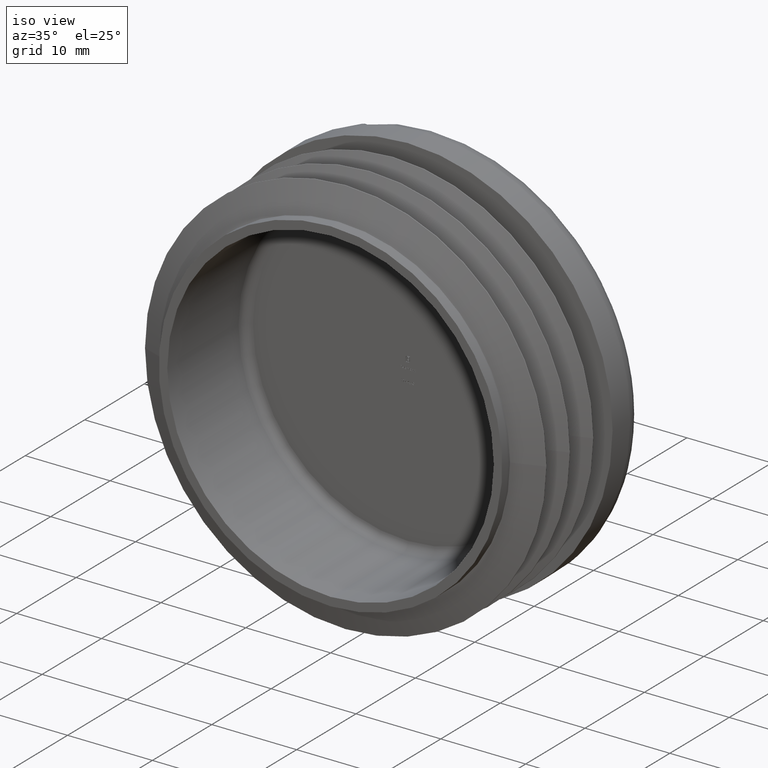
[diagram: clean part render]
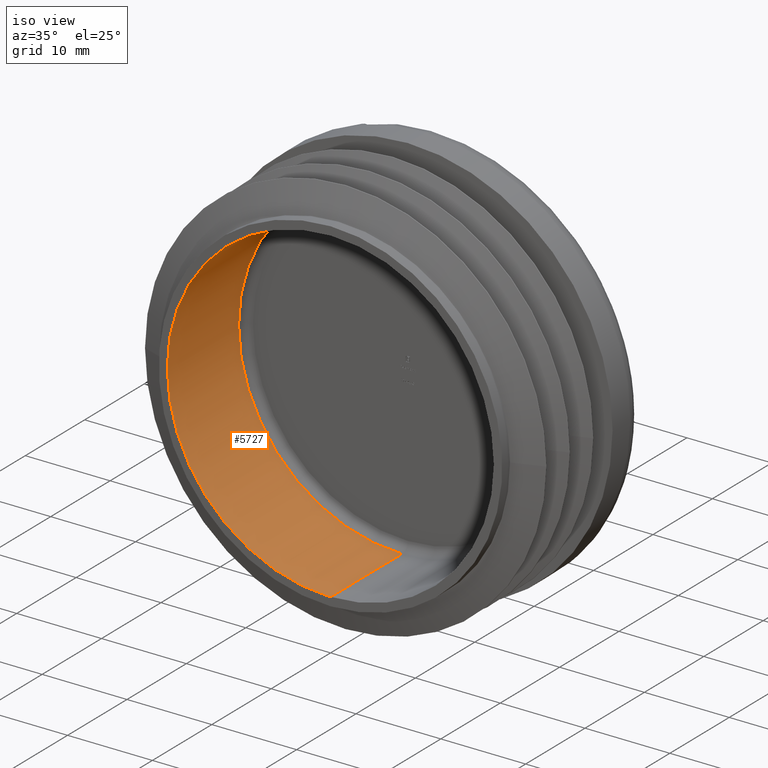
[diagram: same view with one face highlighted and labeled with its STEP entity id]
A machine part, iso view. The second image highlights one B-rep face of the part: STEP entity #5727.
In plain terms, the highlighted cylindrical surface (partial cylindrical patch) has radius 19.25 mm, axis along (-0, -1, -0).
Its self-contained STEP definition (entity closure, byte-faithful):
#263 = DIRECTION ( 'NONE',  ( 0.000000000000000000, 0.000000000000000000, -1.000000000000000000 ) ) ;
#344 = VERTEX_POINT ( 'NONE', #5505 ) ;
#1066 = VECTOR ( 'NONE', #2359, 1000.000000000000000 ) ;
#1110 = CARTESIAN_POINT ( 'NONE',  ( 0.000000000000000000, 11.99999999999999289, 0.000000000000000000 ) ) ;
#1223 = EDGE_CURVE ( 'NONE', #9621, #344, #2016, .T. ) ;
#1348 = ORIENTED_EDGE ( 'NONE', *, *, #3087, .T. ) ;
#2016 = CIRCLE ( 'NONE', #2465, 19.25000000000000000 ) ;
#2067 = ORIENTED_EDGE ( 'NONE', *, *, #11151, .T. ) ;
#2100 = DIRECTION ( 'NONE',  ( 0.000000000000000000, 1.000000000000000000, 0.000000000000000000 ) ) ;
#2152 = VERTEX_POINT ( 'NONE', #5504 ) ;
#2273 = EDGE_LOOP ( 'NONE', ( #7039, #1348, #2067, #9523 ) ) ;
#2359 = DIRECTION ( 'NONE',  ( -0.000000000000000000, -1.000000000000000000, -0.000000000000000000 ) ) ;
#2465 = AXIS2_PLACEMENT_3D ( 'NONE', #1110, #2100, #10789 ) ;
#2688 = DIRECTION ( 'NONE',  ( -0.000000000000000000, -1.000000000000000000, -0.000000000000000000 ) ) ;
#2956 = AXIS2_PLACEMENT_3D ( 'NONE', #11407, #5435, #5567 ) ;
#3087 = EDGE_CURVE ( 'NONE', #344, #2152, #10693, .T. ) ;
#3256 = CARTESIAN_POINT ( 'NONE',  ( 0.000000000000000000, 0.000000000000000000, -19.25000000000000000 ) ) ;
#3899 = LINE ( 'NONE', #12453, #5883 ) ;
#4080 = CARTESIAN_POINT ( 'NONE',  ( 0.000000000000000000, 0.000000000000000000, 0.000000000000000000 ) ) ;
#5286 = CARTESIAN_POINT ( 'NONE',  ( 0.000000000000000000, 11.99999999999999289, -19.25000000000000000 ) ) ;
#5287 = CARTESIAN_POINT ( 'NONE',  ( 2.357445088358654757E-15, 12.99999999999999467, 19.25000000000000000 ) ) ;
#5435 = DIRECTION ( 'NONE',  ( -0.000000000000000000, -1.000000000000000000, -0.000000000000000000 ) ) ;
#5462 = CYLINDRICAL_SURFACE ( 'NONE', #2956, 19.25000000000000000 ) ;
#5504 = CARTESIAN_POINT ( 'NONE',  ( 2.357445088358654757E-15, 0.000000000000000000, 19.25000000000000000 ) ) ;
#5505 = CARTESIAN_POINT ( 'NONE',  ( 2.357445088358654757E-15, 11.99999999999999289, 19.25000000000000000 ) ) ;
#5567 = DIRECTION ( 'NONE',  ( 0.000000000000000000, 0.000000000000000000, -1.000000000000000000 ) ) ;
#5727 = ADVANCED_FACE ( 'NONE', ( #8707 ), #5462, .F. ) ;
#5883 = VECTOR ( 'NONE', #2688, 1000.000000000000000 ) ;
#7039 = ORIENTED_EDGE ( 'NONE', *, *, #1223, .T. ) ;
#8262 = CIRCLE ( 'NONE', #10350, 19.25000000000000000 ) ;
#8482 = EDGE_CURVE ( 'NONE', #9621, #9186, #3899, .T. ) ;
#8707 = FACE_OUTER_BOUND ( 'NONE', #2273, .T. ) ;
#9186 = VERTEX_POINT ( 'NONE', #3256 ) ;
#9523 = ORIENTED_EDGE ( 'NONE', *, *, #8482, .F. ) ;
#9621 = VERTEX_POINT ( 'NONE', #5286 ) ;
#10350 = AXIS2_PLACEMENT_3D ( 'NONE', #4080, #10925, #263 ) ;
#10693 = LINE ( 'NONE', #5287, #1066 ) ;
#10789 = DIRECTION ( 'NONE',  ( 0.000000000000000000, 0.000000000000000000, -1.000000000000000000 ) ) ;
#10925 = DIRECTION ( 'NONE',  ( -0.000000000000000000, -1.000000000000000000, -0.000000000000000000 ) ) ;
#11151 = EDGE_CURVE ( 'NONE', #2152, #9186, #8262, .T. ) ;
#11407 = CARTESIAN_POINT ( 'NONE',  ( 0.000000000000000000, 12.99999999999999467, 0.000000000000000000 ) ) ;
#12453 = CARTESIAN_POINT ( 'NONE',  ( 0.000000000000000000, 12.99999999999999467, -19.25000000000000000 ) ) ;